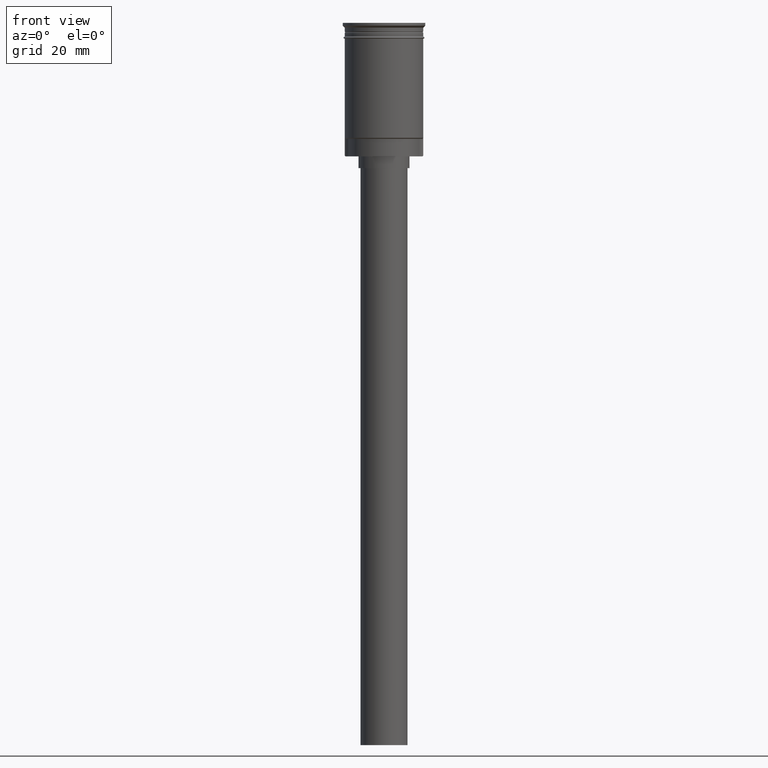
[diagram: clean part render]
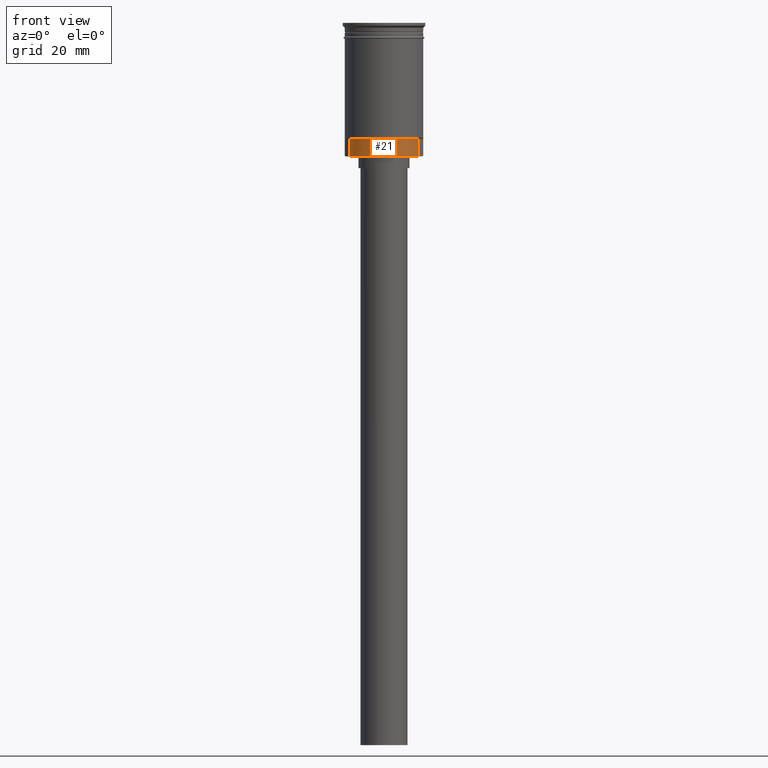
[diagram: same view with one face highlighted and labeled with its STEP entity id]
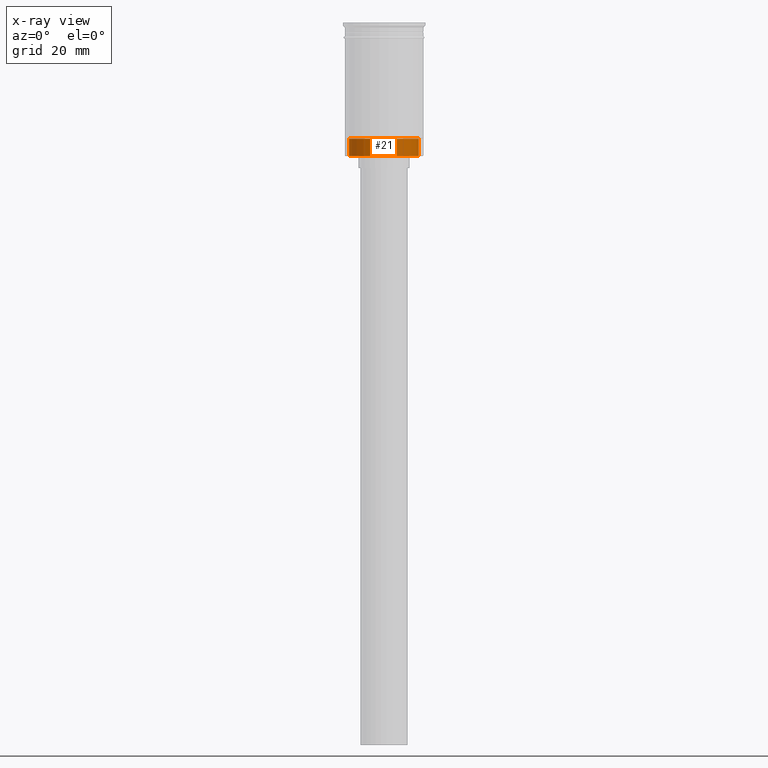
[diagram: x-ray of the same camera — body ghosted, the highlighted face saturated]
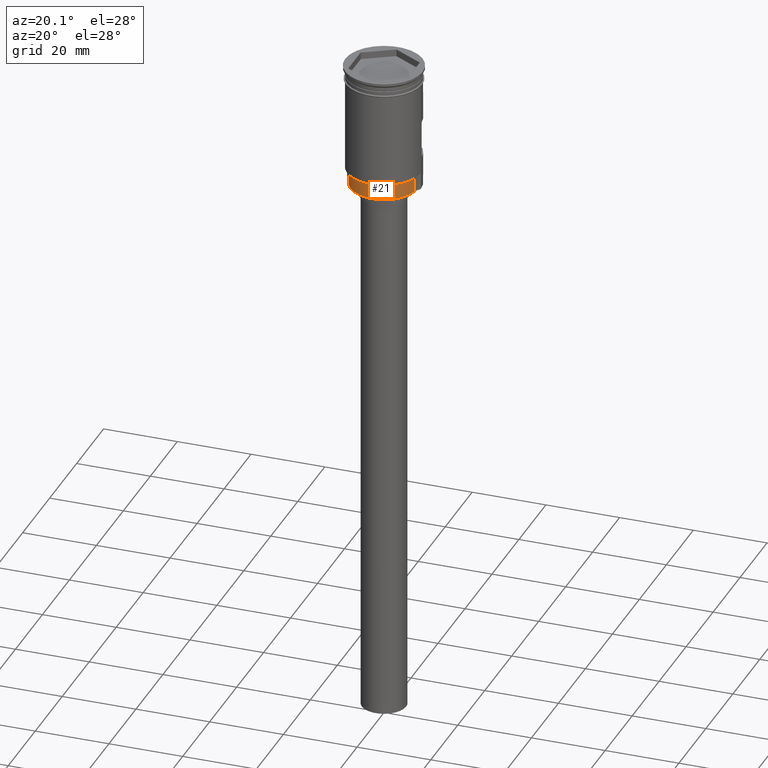
[diagram: same view with one face highlighted and labeled with its STEP entity id]
A machine part, front view. The second image highlights one B-rep face of the part: STEP entity #21.
The next image is the same camera in x-ray: the body ghosted, the highlighted face saturated — about 0% of this face is hidden behind the body in this view.
A second angle (auxiliary view) of the same face is appended — the face is thin or edge-on in the first view.
In plain terms, the highlighted cylindrical surface (edge-blend (fillet) strip) has radius 9.05 mm, axis along (-0, -0, 1).
Its self-contained STEP definition (entity closure, byte-faithful):
#21 = ADVANCED_FACE ( 'NONE', ( #1285 ), #204, .T. ) ;
#26 = EDGE_CURVE ( 'NONE', #810, #1082, #1569, .T. ) ;
#36 = CARTESIAN_POINT ( 'NONE',  ( -8.869844917012439822, -1.796761294148008892, -33.99999999999999289 ) ) ;
#52 = DIRECTION ( 'NONE',  ( -0.000000000000000000, -0.000000000000000000, 1.000000000000000000 ) ) ;
#115 = VERTEX_POINT ( 'NONE', #247 ) ;
#124 = EDGE_CURVE ( 'NONE', #810, #730, #1290, .T. ) ;
#204 = CYLINDRICAL_SURFACE ( 'NONE', #562, 9.049999999999991829 ) ;
#240 = DIRECTION ( 'NONE',  ( 0.000000000000000000, 0.000000000000000000, -1.000000000000000000 ) ) ;
#247 = CARTESIAN_POINT ( 'NONE',  ( -8.869844917012439822, -1.796761294148008892, -29.50000000000000000 ) ) ;
#340 = CARTESIAN_POINT ( 'NONE',  ( 8.869844917012441599, -1.796761294148009780, -33.99999999999999289 ) ) ;
#353 = DIRECTION ( 'NONE',  ( -0.000000000000000000, -0.000000000000000000, 1.000000000000000000 ) ) ;
#366 = DIRECTION ( 'NONE',  ( -1.000000000000000000, 0.000000000000000000, 0.000000000000000000 ) ) ;
#413 = AXIS2_PLACEMENT_3D ( 'NONE', #1582, #240, #366 ) ;
#432 = AXIS2_PLACEMENT_3D ( 'NONE', #499, #733, #742 ) ;
#479 = ORIENTED_EDGE ( 'NONE', *, *, #1341, .T. ) ;
#499 = CARTESIAN_POINT ( 'NONE',  ( 0.000000000000000000, 0.000000000000000000, -33.99999999999999289 ) ) ;
#562 = AXIS2_PLACEMENT_3D ( 'NONE', #933, #697, #1426 ) ;
#602 = EDGE_CURVE ( 'NONE', #730, #115, #1225, .T. ) ;
#697 = DIRECTION ( 'NONE',  ( -0.000000000000000000, -0.000000000000000000, 1.000000000000000000 ) ) ;
#715 = VECTOR ( 'NONE', #353, 1000.000000000000000 ) ;
#730 = VERTEX_POINT ( 'NONE', #36 ) ;
#733 = DIRECTION ( 'NONE',  ( 0.000000000000000000, 0.000000000000000000, -1.000000000000000000 ) ) ;
#742 = DIRECTION ( 'NONE',  ( -1.000000000000000000, 0.000000000000000000, 0.000000000000000000 ) ) ;
#810 = VERTEX_POINT ( 'NONE', #340 ) ;
#840 = ORIENTED_EDGE ( 'NONE', *, *, #26, .T. ) ;
#884 = CARTESIAN_POINT ( 'NONE',  ( 8.869844917012441599, -1.796761294148009780, -29.50000000000000000 ) ) ;
#892 = EDGE_LOOP ( 'NONE', ( #479, #1588, #1442, #840 ) ) ;
#933 = CARTESIAN_POINT ( 'NONE',  ( 0.000000000000000000, 0.000000000000000000, -33.99999999999999289 ) ) ;
#969 = CARTESIAN_POINT ( 'NONE',  ( -8.869844917012439822, -1.796761294148008892, -33.99999999999999289 ) ) ;
#1031 = CIRCLE ( 'NONE', #413, 9.049999999999991829 ) ;
#1082 = VERTEX_POINT ( 'NONE', #884 ) ;
#1164 = CARTESIAN_POINT ( 'NONE',  ( 8.869844917012441599, -1.796761294148009780, -33.99999999999999289 ) ) ;
#1225 = LINE ( 'NONE', #969, #715 ) ;
#1285 = FACE_OUTER_BOUND ( 'NONE', #892, .T. ) ;
#1290 = CIRCLE ( 'NONE', #432, 9.049999999999991829 ) ;
#1341 = EDGE_CURVE ( 'NONE', #1082, #115, #1031, .T. ) ;
#1426 = DIRECTION ( 'NONE',  ( 1.000000000000000000, 0.000000000000000000, 0.000000000000000000 ) ) ;
#1442 = ORIENTED_EDGE ( 'NONE', *, *, #124, .F. ) ;
#1471 = VECTOR ( 'NONE', #52, 1000.000000000000000 ) ;
#1569 = LINE ( 'NONE', #1164, #1471 ) ;
#1582 = CARTESIAN_POINT ( 'NONE',  ( 0.000000000000000000, 0.000000000000000000, -29.50000000000000000 ) ) ;
#1588 = ORIENTED_EDGE ( 'NONE', *, *, #602, .F. ) ;